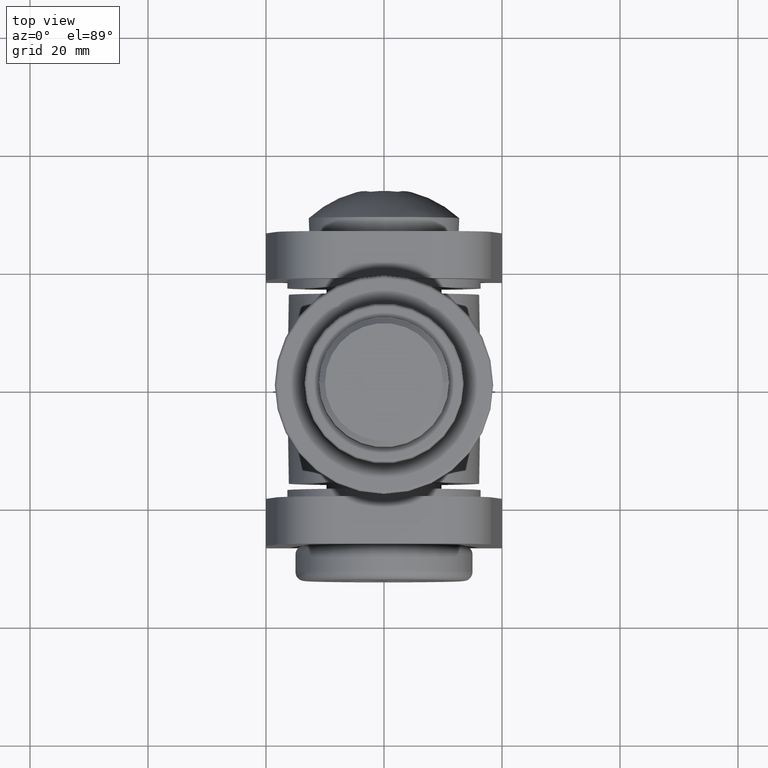
[diagram: clean part render]
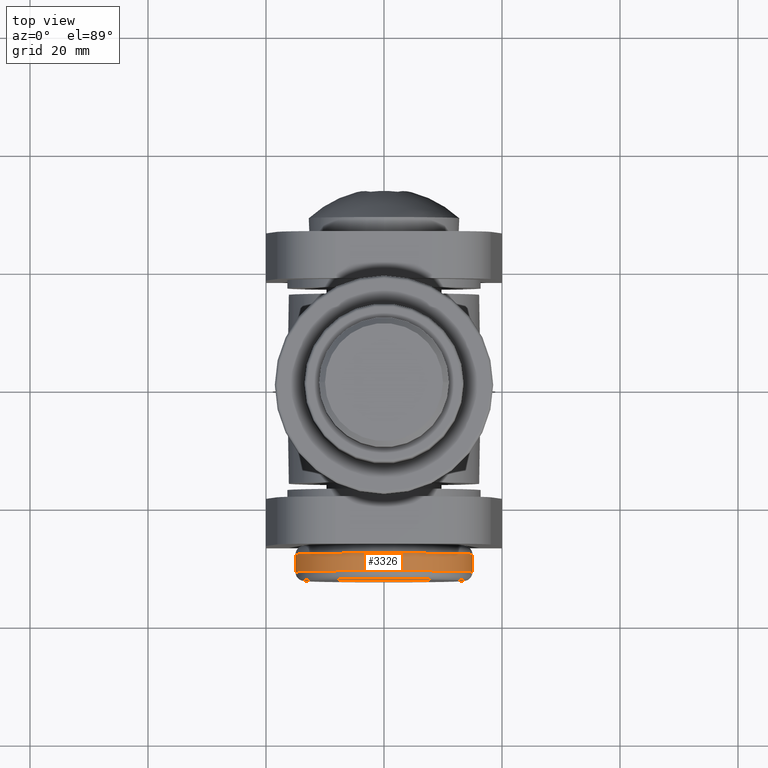
[diagram: same view with one face highlighted and labeled with its STEP entity id]
A machine part, top view. The second image highlights one B-rep face of the part: STEP entity #3326.
In plain terms, the highlighted cylindrical surface (partial cylindrical patch) has radius 15 mm, axis along (-0, 1, 0).
Its self-contained STEP definition (entity closure, byte-faithful):
#297 = DIRECTION ( 'NONE',  ( 3.310621835482434500E-017, -1.000000000000000000, 0.0000000000000000000 ) ) ;
#654 = ORIENTED_EDGE ( 'NONE', *, *, #8863, .T. ) ;
#817 = EDGE_CURVE ( 'NONE', #5391, #5549, #12242, .T. ) ;
#1462 = EDGE_LOOP ( 'NONE', ( #6894, #4643, #654, #7036 ) ) ;
#1527 = DIRECTION ( 'NONE',  ( 1.000000000000000000, 5.782411586589357400E-017, 0.0000000000000000000 ) ) ;
#1634 = DIRECTION ( 'NONE',  ( -3.310621835482434500E-017, 1.000000000000000000, -0.0000000000000000000 ) ) ;
#1735 = VECTOR ( 'NONE', #1634, 1000.000000000000000 ) ;
#1935 = DIRECTION ( 'NONE',  ( -1.000000000000000000, -2.891205793294678700E-017, 0.0000000000000000000 ) ) ;
#2038 = CARTESIAN_POINT ( 'NONE',  ( -15.00000000000000000, 4.500000000000003600, 0.0000000000000000000 ) ) ;
#2395 = DIRECTION ( 'NONE',  ( -3.310621835482434500E-017, 1.000000000000000000, -0.0000000000000000000 ) ) ;
#2567 = CIRCLE ( 'NONE', #14240, 15.00000000000000000 ) ;
#2862 = CARTESIAN_POINT ( 'NONE',  ( -1.812565454926632200E-015, 54.74999999999999300, 0.0000000000000000000 ) ) ;
#3326 = ADVANCED_FACE ( 'NONE', ( #9574 ), #3624, .T. ) ;
#3624 = CYLINDRICAL_SURFACE ( 'NONE', #14893, 15.00000000000000000 ) ;
#3908 = VERTEX_POINT ( 'NONE', #14169 ) ;
#4310 = DIRECTION ( 'NONE',  ( -3.310621835482434500E-017, 1.000000000000000000, -0.0000000000000000000 ) ) ;
#4402 = VERTEX_POINT ( 'NONE', #7205 ) ;
#4643 = ORIENTED_EDGE ( 'NONE', *, *, #5745, .T. ) ;
#5338 = CARTESIAN_POINT ( 'NONE',  ( -1.489779825967093200E-016, 4.500000000000003600, 0.0000000000000000000 ) ) ;
#5391 = VERTEX_POINT ( 'NONE', #11151 ) ;
#5476 = DIRECTION ( 'NONE',  ( -3.310621835482434500E-017, 1.000000000000000000, -0.0000000000000000000 ) ) ;
#5549 = VERTEX_POINT ( 'NONE', #2038 ) ;
#5745 = EDGE_CURVE ( 'NONE', #3908, #4402, #10405, .T. ) ;
#6220 = VECTOR ( 'NONE', #2395, 1000.000000000000000 ) ;
#6894 = ORIENTED_EDGE ( 'NONE', *, *, #11517, .T. ) ;
#7012 = CARTESIAN_POINT ( 'NONE',  ( -4.965932753223618500E-017, 1.500000000000001300, 0.0000000000000000000 ) ) ;
#7036 = ORIENTED_EDGE ( 'NONE', *, *, #817, .F. ) ;
#7205 = CARTESIAN_POINT ( 'NONE',  ( 15.00000000000000000, 4.500000000000004400, 1.836970198721029600E-015 ) ) ;
#7649 = CIRCLE ( 'NONE', #9891, 15.00000000000000000 ) ;
#8768 = CARTESIAN_POINT ( 'NONE',  ( 14.99999999999999800, 54.74999999999999300, 1.836970198721029600E-015 ) ) ;
#8863 = EDGE_CURVE ( 'NONE', #4402, #5549, #7649, .T. ) ;
#9574 = FACE_OUTER_BOUND ( 'NONE', #1462, .T. ) ;
#9743 = CARTESIAN_POINT ( 'NONE',  ( -15.00000000000000200, 54.74999999999999300, 0.0000000000000000000 ) ) ;
#9891 = AXIS2_PLACEMENT_3D ( 'NONE', #5338, #297, #1527 ) ;
#10405 = LINE ( 'NONE', #8768, #1735 ) ;
#11151 = CARTESIAN_POINT ( 'NONE',  ( -15.00000000000000000, 1.500000000000000900, 0.0000000000000000000 ) ) ;
#11517 = EDGE_CURVE ( 'NONE', #5391, #3908, #2567, .T. ) ;
#12242 = LINE ( 'NONE', #9743, #6220 ) ;
#12760 = DIRECTION ( 'NONE',  ( -1.000000000000000000, 0.0000000000000000000, 0.0000000000000000000 ) ) ;
#14169 = CARTESIAN_POINT ( 'NONE',  ( 15.00000000000000000, 1.500000000000001800, 1.836970198721029600E-015 ) ) ;
#14240 = AXIS2_PLACEMENT_3D ( 'NONE', #7012, #4310, #1935 ) ;
#14893 = AXIS2_PLACEMENT_3D ( 'NONE', #2862, #5476, #12760 ) ;